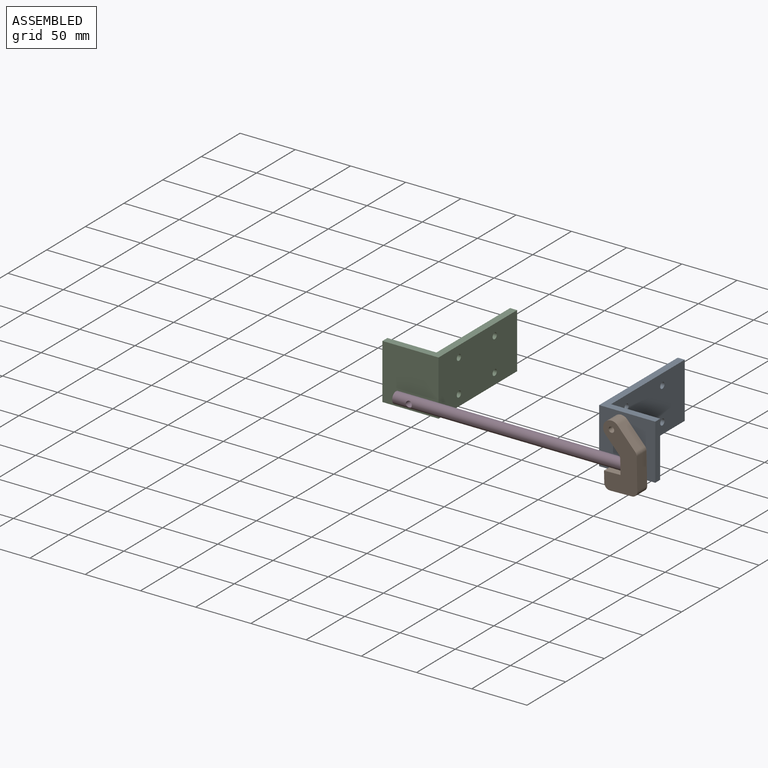
[diagram: assembled view]
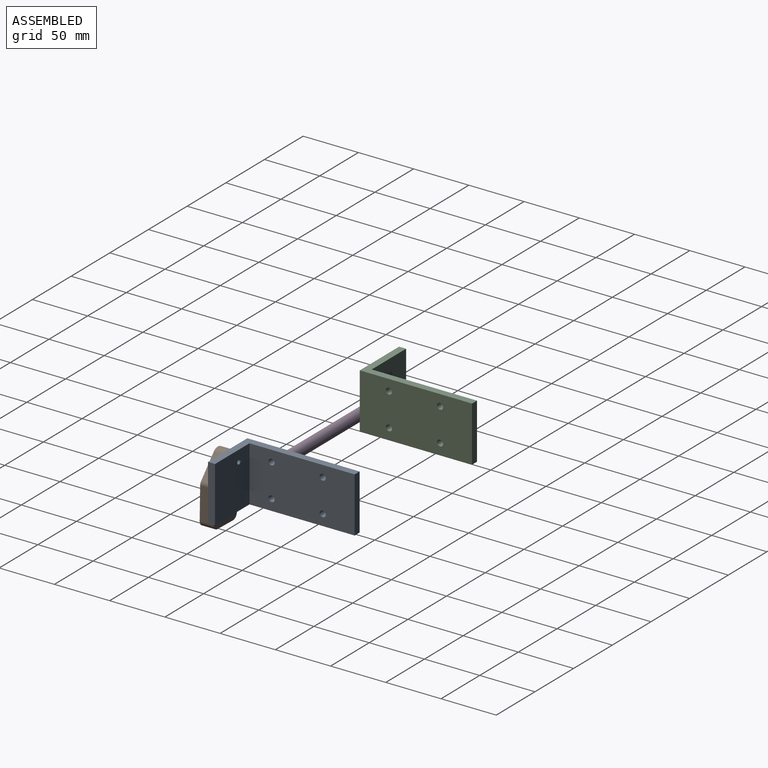
[diagram: assembled view, second angle]
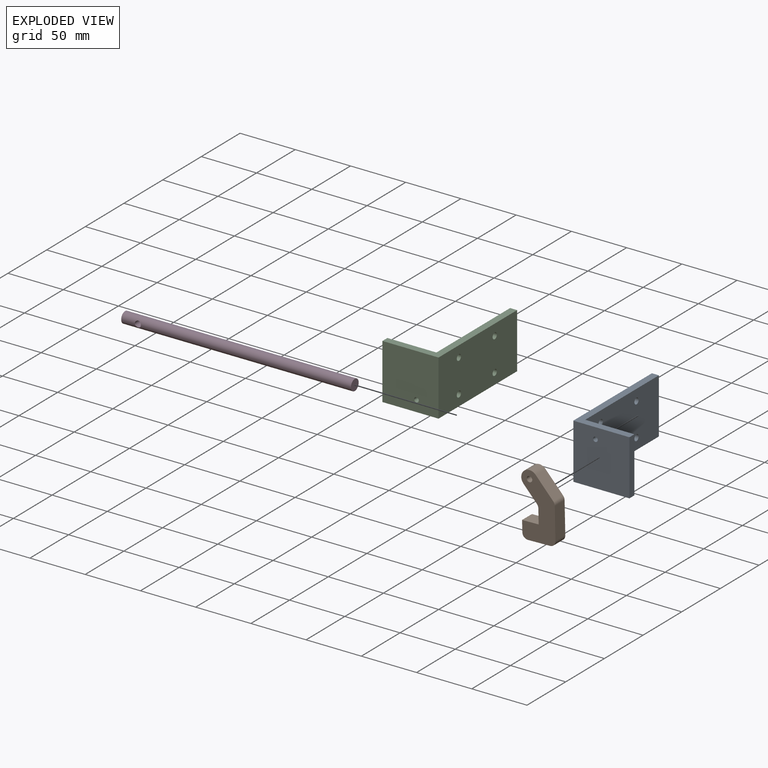
[diagram: exploded view]
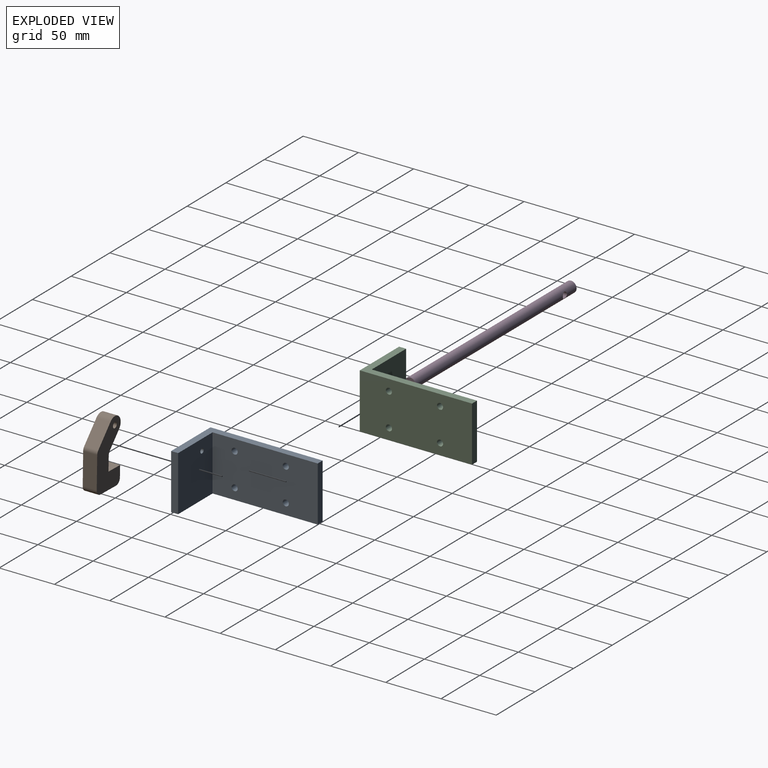
[diagram: exploded view, second angle]
ASSEMBLY  parts=4 mates=2
PART A: 13 faces, bbox 50.8x101.6x50 mm
  f0: plane 50x6.35mm, normal (0,1,0), area 317.5mm2, adj f1,f5,f6,f7
  f1: plane 95.25x50mm, normal (1,0,0), area 4667.5mm2, adj f0,f2,f6,f7,f9,f10,f11,f12
  f2: plane 50x44.45mm, normal (0,1,0), area 2208.6mm2, adj f1,f3,f6,f7,f8
  f3: plane 50x6.35mm, normal (1,0,0), area 317.5mm2, adj f2,f4,f6,f7
  f4: plane 50.8x50mm, normal (0,-1,0), area 2526.1mm2, adj f3,f5,f6,f7,f8
  f5: plane 101.6x50mm, normal (-1,0,0), area 4985mm2, adj f0,f4,f6,f7,f9,f10,f11,f12
  f6: plane 101.6x50.8mm, normal (0,0,1), area 927.4mm2, adj f0,f1,f2,f3,f4,f5
  f7: plane 101.6x50.8mm, normal (0,0,-1), area 927.4mm2, adj f0,f1,f2,f3,f4,f5
  f8: cylinder r=2.1mm len=6.35mm, axis (0,-1,0), area 83.8mm2, adj f2,f4
  f9: cylinder r=2.75mm len=6.35mm, axis (1,0,0), area 109.7mm2, adj f1,f5
  f10: cylinder r=2.75mm len=6.35mm, axis (1,0,0), area 109.7mm2, adj f1,f5
  f11: cylinder r=2.75mm len=6.35mm, axis (1,0,0), area 109.7mm2, adj f1,f5
  f12: cylinder r=2.75mm len=6.35mm, axis (1,0,0), area 109.7mm2, adj f1,f5
PART B: 15 faces, bbox 30x12.7x57.5 mm
  f0: plane 28.75x12.7mm, normal (-1,0,0), area 365.1mm2, adj f8,f9,f11,f14
  f1: plane 17.89x15.62mm, normal (-0.75,0,-0.66), area 301.6mm2, adj f2,f8,f9,f11
  f2: cylinder r=7.5mm len=13.15mm, axis (0,1,0), area 299.2mm2, adj f1,f3,f8,f9
  f3: plane 13.66x12.7mm, normal (0.75,0,0.66), area 230.2mm2, adj f2,f8,f9,f12
  f4: plane 13.13x12.7mm, normal (1,0,0), area 166.7mm2, adj f5,f8,f9,f12
  f5: plane 15x12.7mm, normal (0,0,-1), area 190.5mm2, adj f4,f6,f8,f9
  f6: plane 12.7x10mm, normal (1,0,0), area 127mm2, adj f5,f8,f9,f13
  f7: plane 20x12.7mm, normal (0,0,1), area 254mm2, adj f8,f9,f13,f14
  f8: plane 57.5x30mm, normal (0,-1,0), area 1117.4mm2, adj f0,f1,f2,f3,f4,f5,f6,f7
  f9: plane 57.5x30mm, normal (0,1,0), area 1117.4mm2, adj f0,f1,f2,f3,f4,f5,f6,f7
  f10: cylinder r=2.5mm len=12.7mm, axis (0,1,0), area 199.5mm2, adj f8,f9
  f11: cylinder r=5mm len=12.7mm, axis (0,-1,0), area 45.6mm2, adj f0,f1,f8,f9
  f12: cylinder r=5mm len=12.7mm, axis (0,-1,0), area 45.6mm2, adj f3,f4,f8,f9
  f13: cylinder r=5mm len=12.7mm, axis (0,1,0), area 99.7mm2, adj f6,f7,f8,f9
  f14: cylinder r=5mm len=12.7mm, axis (0,1,0), area 99.7mm2, adj f0,f7,f8,f9
PART C: 13 faces, bbox 50.8x101.6x50 mm
  f0: plane 50x6.35mm, normal (0,1,0), area 317.5mm2, adj f1,f5,f6,f7
  f1: plane 95.25x50mm, normal (-1,0,0), area 4667.5mm2, adj f0,f2,f6,f7,f9,f10,f11,f12
  f2: plane 50x44.45mm, normal (0,1,0), area 2208.6mm2, adj f1,f3,f6,f7,f8
  f3: plane 50x6.35mm, normal (-1,0,0), area 317.5mm2, adj f2,f4,f6,f7
  f4: plane 50.8x50mm, normal (0,-1,0), area 2526.1mm2, adj f3,f5,f6,f7,f8
  f5: plane 101.6x50mm, normal (1,0,0), area 4985mm2, adj f0,f4,f6,f7,f9,f10,f11,f12
  f6: plane 101.6x50.8mm, normal (0,0,1), area 927.4mm2, adj f0,f1,f2,f3,f4,f5
  f7: plane 101.6x50.8mm, normal (0,0,-1), area 927.4mm2, adj f0,f1,f2,f3,f4,f5
  f8: cylinder r=2.1mm len=6.35mm, axis (0,-1,0), area 83.8mm2, adj f2,f4
  f9: cylinder r=2.75mm len=6.35mm, axis (1,0,0), area 109.7mm2, adj f1,f5
  f10: cylinder r=2.75mm len=6.35mm, axis (1,0,0), area 109.7mm2, adj f1,f5
  f11: cylinder r=2.75mm len=6.35mm, axis (1,0,0), area 109.7mm2, adj f1,f5
  f12: cylinder r=2.75mm len=6.35mm, axis (1,0,0), area 109.7mm2, adj f1,f5
PART D: 4 faces, bbox 208x10x10 mm
  f0: cylinder r=5mm len=208mm, axis (-1,0,0), area 6484.9mm2, adj f1,f2,f3
  f1: plane 10x10mm, normal (1,0,0), area 78.5mm2, adj f0
  f2: plane 10x10mm, normal (-1,0,0), area 78.5mm2, adj f0
  f3: cylinder r=2.75mm len=10mm, axis (0,-1,0), area 158.9mm2, adj f0
PLACE A at identity
PLACE B rot(axis=(0,1,0),178.7deg) t=(191.41,-50.8,-12.49)mm
PLACE C at identity fixed
PLACE D rot(axis=(-1,0,0),180deg) t=(94.4,-55.8,-14.91)mm
MATE revolute B.f10 <-> A.f8  axis (0,1,0) through (190.8,-50.8,15)mm
MATE cylindrical C.f8 <-> D.f3  axis (0,-1,0) through (5.4,-50.8,-15)mm
